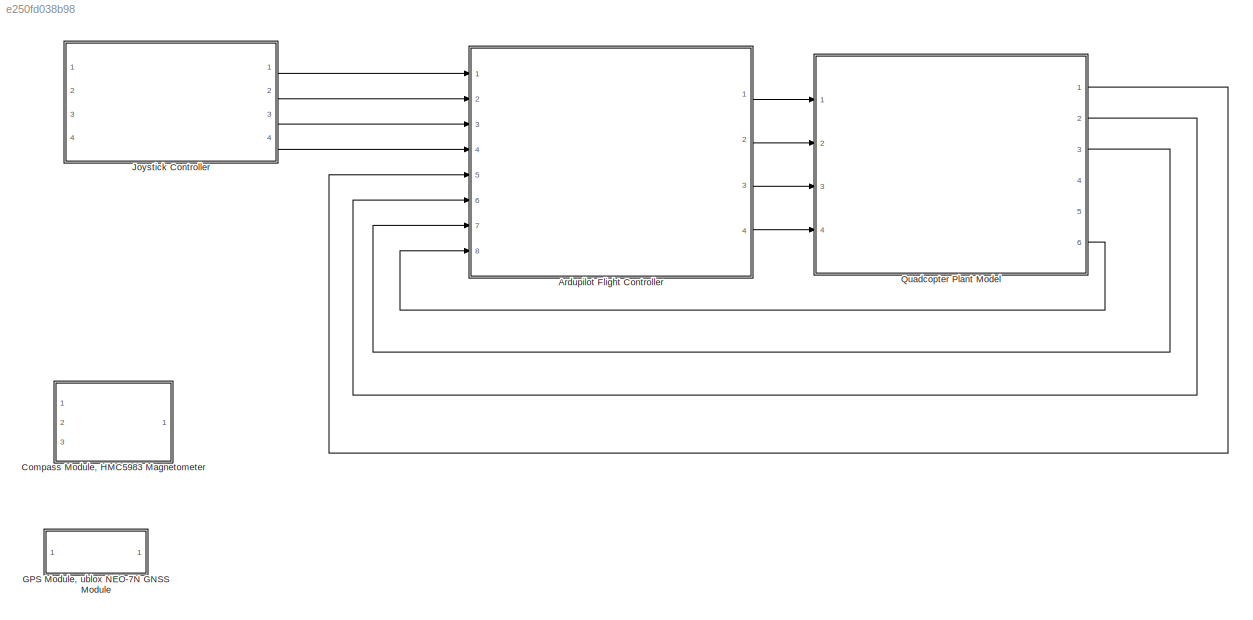
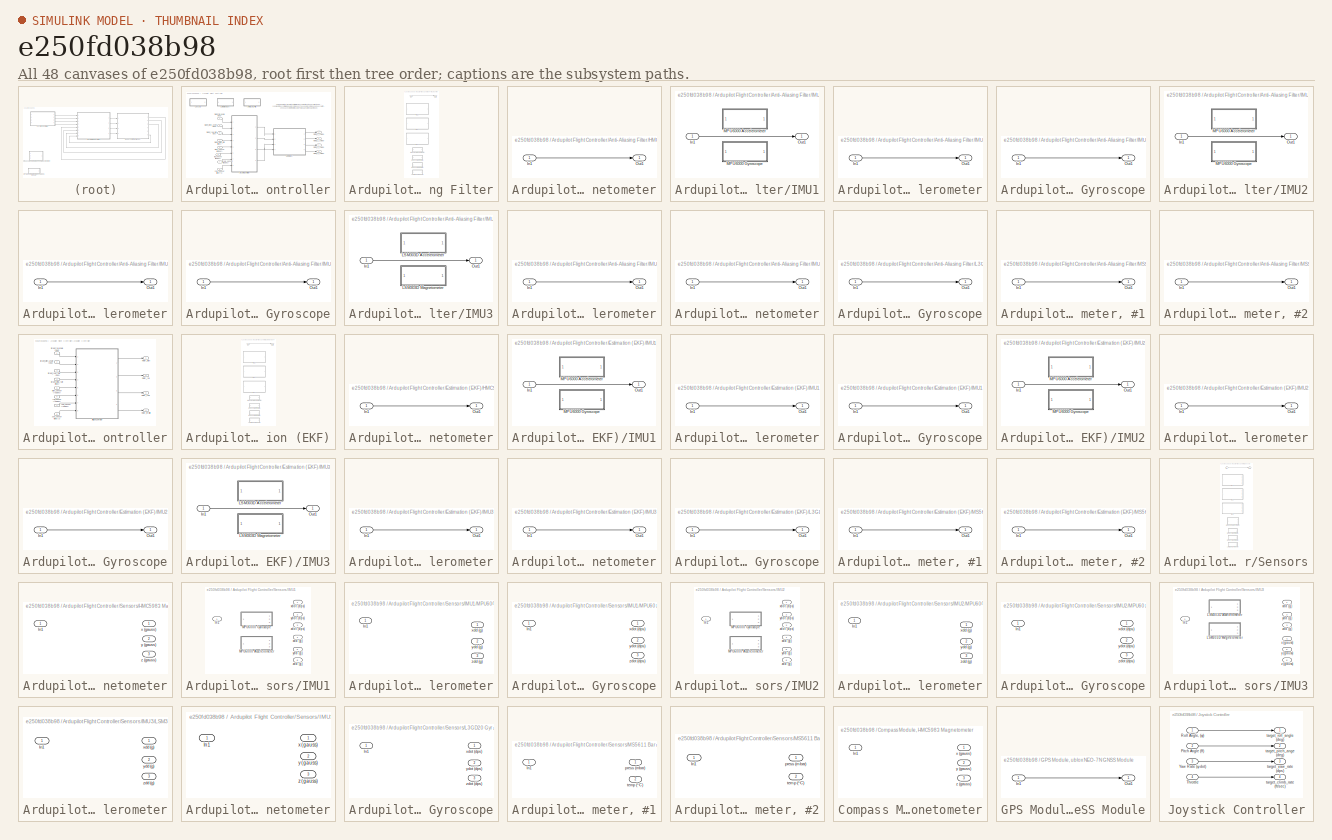
[diagram: thumbnail index - all 48 canvases of the model, root first then tree order]
MODEL slx_e250fd038b98
KIND model
CONFIG AbsTol = auto
CONFIG FixedStep = auto
CONFIG MaxStep = auto
CONFIG MinStep = auto
CONFIG RelTol = 1e-3
CONFIG SampleTimeConstraint = Unconstrained
CONFIG Solver = ode45
CONFIG SolverMode = Auto
CONFIG SolverName = ode45
CONFIG StartTime = 0.0
CONFIG StopTime = 10.0
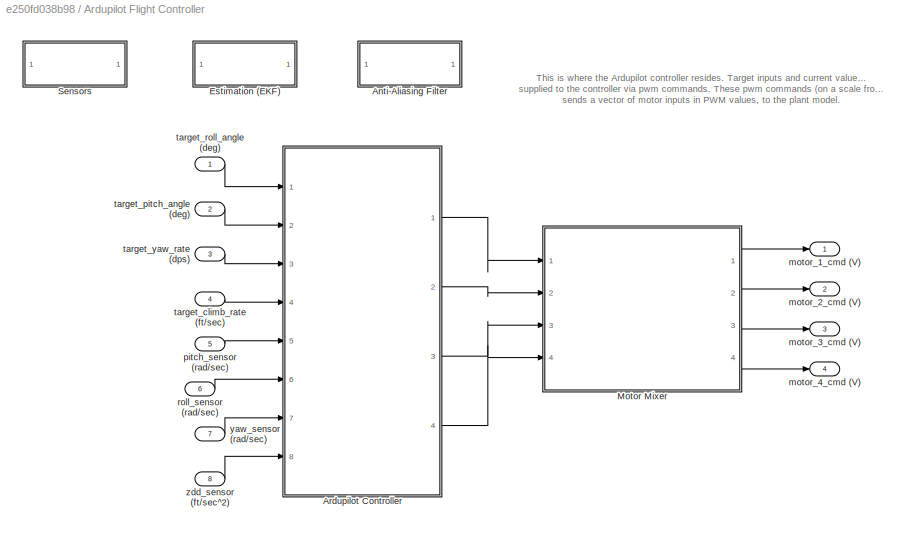
BLOCK [SubSystem] Ardupilot Flight Controller
  Ports = [8, 4]
  RequestExecContextInheritance = off
  Variant = off
BLOCK [SubSystem] Ardupilot Flight Controller/Anti-Aliasing Filter
  Commented = on
  Ports = [1, 1]
  RequestExecContextInheritance = off
  Variant = off
BLOCK [SubSystem] Ardupilot Flight Controller/Anti-Aliasing Filter/HMC5983 Magnetometer
  Ports = [1, 1]
  RequestExecContextInheritance = off
  Variant = off
BLOCK [Inport] Ardupilot Flight Controller/Anti-Aliasing Filter/HMC5983 Magnetometer/In1
  IconDisplay = Port number
BLOCK [Outport] Ardupilot Flight Controller/Anti-Aliasing Filter/HMC5983 Magnetometer/Out1
  IconDisplay = Port number
BLOCK [SubSystem] Ardupilot Flight Controller/Anti-Aliasing Filter/IMU1
  Ports = [1, 1]
  RequestExecContextInheritance = off
  Variant = off
BLOCK [Inport] Ardupilot Flight Controller/Anti-Aliasing Filter/IMU1/In1
  IconDisplay = Port number
BLOCK [SubSystem] Ardupilot Flight Controller/Anti-Aliasing Filter/IMU1/MPU6000 Accelerometer
  Ports = [1, 1]
  RequestExecContextInheritance = off
  Variant = off
BLOCK [Inport] Ardupilot Flight Controller/Anti-Aliasing Filter/IMU1/MPU6000 Accelerometer/In1
  IconDisplay = Port number
BLOCK [Outport] Ardupilot Flight Controller/Anti-Aliasing Filter/IMU1/MPU6000 Accelerometer/Out1
  IconDisplay = Port number
BLOCK [SubSystem] Ardupilot Flight Controller/Anti-Aliasing Filter/IMU1/MPU6000 Gyroscope
  Ports = [1, 1]
  RequestExecContextInheritance = off
  Variant = off
BLOCK [Inport] Ardupilot Flight Controller/Anti-Aliasing Filter/IMU1/MPU6000 Gyroscope/In1
  IconDisplay = Port number
BLOCK [Outport] Ardupilot Flight Controller/Anti-Aliasing Filter/IMU1/MPU6000 Gyroscope/Out1
  IconDisplay = Port number
BLOCK [Outport] Ardupilot Flight Controller/Anti-Aliasing Filter/IMU1/Out1
  IconDisplay = Port number
BLOCK [SubSystem] Ardupilot Flight Controller/Anti-Aliasing Filter/IMU2
  Ports = [1, 1]
  RequestExecContextInheritance = off
  Variant = off
BLOCK [Inport] Ardupilot Flight Controller/Anti-Aliasing Filter/IMU2/In1
  IconDisplay = Port number
BLOCK [SubSystem] Ardupilot Flight Controller/Anti-Aliasing Filter/IMU2/MPU6000 Accelerometer
  Ports = [1, 1]
  RequestExecContextInheritance = off
  Variant = off
BLOCK [Inport] Ardupilot Flight Controller/Anti-Aliasing Filter/IMU2/MPU6000 Accelerometer/In1
  IconDisplay = Port number
BLOCK [Outport] Ardupilot Flight Controller/Anti-Aliasing Filter/IMU2/MPU6000 Accelerometer/Out1
  IconDisplay = Port number
BLOCK [SubSystem] Ardupilot Flight Controller/Anti-Aliasing Filter/IMU2/MPU6000 Gyroscope
  Ports = [1, 1]
  RequestExecContextInheritance = off
  Variant = off
BLOCK [Inport] Ardupilot Flight Controller/Anti-Aliasing Filter/IMU2/MPU6000 Gyroscope/In1
  IconDisplay = Port number
BLOCK [Outport] Ardupilot Flight Controller/Anti-Aliasing Filter/IMU2/MPU6000 Gyroscope/Out1
  IconDisplay = Port number
BLOCK [Outport] Ardupilot Flight Controller/Anti-Aliasing Filter/IMU2/Out1
  IconDisplay = Port number
BLOCK [SubSystem] Ardupilot Flight Controller/Anti-Aliasing Filter/IMU3
  Ports = [1, 1]
  RequestExecContextInheritance = off
  Variant = off
BLOCK [Inport] Ardupilot Flight Controller/Anti-Aliasing Filter/IMU3/In1
  IconDisplay = Port number
BLOCK [SubSystem] Ardupilot Flight Controller/Anti-Aliasing Filter/IMU3/LSM303D Accelerometer
  Ports = [1, 1]
  RequestExecContextInheritance = off
  Variant = off
BLOCK [Inport] Ardupilot Flight Controller/Anti-Aliasing Filter/IMU3/LSM303D Accelerometer/In1
  IconDisplay = Port number
BLOCK [Outport] Ardupilot Flight Controller/Anti-Aliasing Filter/IMU3/LSM303D Accelerometer/Out1
  IconDisplay = Port number
BLOCK [SubSystem] Ardupilot Flight Controller/Anti-Aliasing Filter/IMU3/LSM303D Magnetometer
  Ports = [1, 1]
  RequestExecContextInheritance = off
  Variant = off
BLOCK [Inport] Ardupilot Flight Controller/Anti-Aliasing Filter/IMU3/LSM303D Magnetometer/In1
  IconDisplay = Port number
BLOCK [Outport] Ardupilot Flight Controller/Anti-Aliasing Filter/IMU3/LSM303D Magnetometer/Out1
  IconDisplay = Port number
BLOCK [Outport] Ardupilot Flight Controller/Anti-Aliasing Filter/IMU3/Out1
  IconDisplay = Port number
BLOCK [Inport] Ardupilot Flight Controller/Anti-Aliasing Filter/In1
  IconDisplay = Port number
BLOCK [SubSystem] Ardupilot Flight Controller/Anti-Aliasing Filter/L3GD20 Gyroscope
  Ports = [1, 1]
  RequestExecContextInheritance = off
  Variant = off
BLOCK [Inport] Ardupilot Flight Controller/Anti-Aliasing Filter/L3GD20 Gyroscope/In1
  IconDisplay = Port number
BLOCK [Outport] Ardupilot Flight Controller/Anti-Aliasing Filter/L3GD20 Gyroscope/Out1
  IconDisplay = Port number
BLOCK [SubSystem] Ardupilot Flight Controller/Anti-Aliasing Filter/MS5611 Barometer, #1
  Ports = [1, 1]
  RequestExecContextInheritance = off
  Variant = off
BLOCK [Inport] Ardupilot Flight Controller/Anti-Aliasing Filter/MS5611 Barometer, #1/In1
  IconDisplay = Port number
BLOCK [Outport] Ardupilot Flight Controller/Anti-Aliasing Filter/MS5611 Barometer, #1/Out1
  IconDisplay = Port number
BLOCK [SubSystem] Ardupilot Flight Controller/Anti-Aliasing Filter/MS5611 Barometer, #2
  Ports = [1, 1]
  RequestExecContextInheritance = off
  Variant = off
BLOCK [Inport] Ardupilot Flight Controller/Anti-Aliasing Filter/MS5611 Barometer, #2/In1
  IconDisplay = Port number
BLOCK [Outport] Ardupilot Flight Controller/Anti-Aliasing Filter/MS5611 Barometer, #2/Out1
  IconDisplay = Port number
BLOCK [Outport] Ardupilot Flight Controller/Anti-Aliasing Filter/Out1
  IconDisplay = Port number
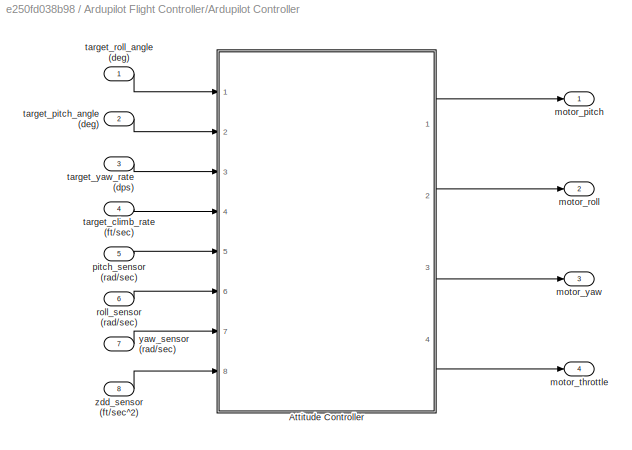
BLOCK [SubSystem] Ardupilot Flight Controller/Ardupilot Controller
  Ports = [8, 4]
  RequestExecContextInheritance = off
  Variant = off
BLOCK [ModelReference] Ardupilot Flight Controller/Ardupilot Controller/Attitude Controller
  CopyOfModelName = quadcopter_plant_model.slx
  ModelNameDialog = attitude_controller.slx
  ModelReferenceVersion = 1.62
  Ports = [8, 4]
  Variant = off
BLOCK [Outport] Ardupilot Flight Controller/Ardupilot Controller/motor_pitch
  IconDisplay = Port number
BLOCK [Outport] Ardupilot Flight Controller/Ardupilot Controller/motor_roll
  IconDisplay = Port number
  Port = 2
BLOCK [Outport] Ardupilot Flight Controller/Ardupilot Controller/motor_throttle
  IconDisplay = Port number
  Port = 4
BLOCK [Outport] Ardupilot Flight Controller/Ardupilot Controller/motor_yaw
  IconDisplay = Port number
  Port = 3
BLOCK [Inport] Ardupilot Flight Controller/Ardupilot Controller/pitch_sensor (rad//sec)
  IconDisplay = Port number
  Port = 5
BLOCK [Inport] Ardupilot Flight Controller/Ardupilot Controller/roll_sensor (rad//sec)
  IconDisplay = Port number
  Port = 6
BLOCK [Inport] Ardupilot Flight Controller/Ardupilot Controller/target_climb_rate (ft//sec)
  IconDisplay = Port number
  Port = 4
BLOCK [Inport] Ardupilot Flight Controller/Ardupilot Controller/target_pitch_angle (deg)
  IconDisplay = Port number
  Port = 2
BLOCK [Inport] Ardupilot Flight Controller/Ardupilot Controller/target_roll_angle (deg)
  IconDisplay = Port number
BLOCK [Inport] Ardupilot Flight Controller/Ardupilot Controller/target_yaw_rate (dps)
  IconDisplay = Port number
  Port = 3
BLOCK [Inport] Ardupilot Flight Controller/Ardupilot Controller/yaw_sensor (rad//sec)
  IconDisplay = Port number
  Port = 7
BLOCK [Inport] Ardupilot Flight Controller/Ardupilot Controller/zdd_sensor (ft//sec^2)
  IconDisplay = Port number
  Port = 8
BLOCK [SubSystem] Ardupilot Flight Controller/Estimation (EKF)
  Commented = on
  Ports = [1, 1]
  RequestExecContextInheritance = off
  Variant = off
BLOCK [SubSystem] Ardupilot Flight Controller/Estimation (EKF)/HMC5983 Magnetometer
  Ports = [1, 1]
  RequestExecContextInheritance = off
  Variant = off
BLOCK [Inport] Ardupilot Flight Controller/Estimation (EKF)/HMC5983 Magnetometer/In1
  IconDisplay = Port number
BLOCK [Outport] Ardupilot Flight Controller/Estimation (EKF)/HMC5983 Magnetometer/Out1
  IconDisplay = Port number
BLOCK [SubSystem] Ardupilot Flight Controller/Estimation (EKF)/IMU1
  Ports = [1, 1]
  RequestExecContextInheritance = off
  Variant = off
BLOCK [Inport] Ardupilot Flight Controller/Estimation (EKF)/IMU1/In1
  IconDisplay = Port number
BLOCK [SubSystem] Ardupilot Flight Controller/Estimation (EKF)/IMU1/MPU6000 Accelerometer
  Ports = [1, 1]
  RequestExecContextInheritance = off
  Variant = off
BLOCK [Inport] Ardupilot Flight Controller/Estimation (EKF)/IMU1/MPU6000 Accelerometer/In1
  IconDisplay = Port number
BLOCK [Outport] Ardupilot Flight Controller/Estimation (EKF)/IMU1/MPU6000 Accelerometer/Out1
  IconDisplay = Port number
BLOCK [SubSystem] Ardupilot Flight Controller/Estimation (EKF)/IMU1/MPU6000 Gyroscope
  Ports = [1, 1]
  RequestExecContextInheritance = off
  Variant = off
BLOCK [Inport] Ardupilot Flight Controller/Estimation (EKF)/IMU1/MPU6000 Gyroscope/In1
  IconDisplay = Port number
BLOCK [Outport] Ardupilot Flight Controller/Estimation (EKF)/IMU1/MPU6000 Gyroscope/Out1
  IconDisplay = Port number
BLOCK [Outport] Ardupilot Flight Controller/Estimation (EKF)/IMU1/Out1
  IconDisplay = Port number
BLOCK [SubSystem] Ardupilot Flight Controller/Estimation (EKF)/IMU2
  Ports = [1, 1]
  RequestExecContextInheritance = off
  Variant = off
BLOCK [Inport] Ardupilot Flight Controller/Estimation (EKF)/IMU2/In1
  IconDisplay = Port number
BLOCK [SubSystem] Ardupilot Flight Controller/Estimation (EKF)/IMU2/MPU6000 Accelerometer
  Ports = [1, 1]
  RequestExecContextInheritance = off
  Variant = off
BLOCK [Inport] Ardupilot Flight Controller/Estimation (EKF)/IMU2/MPU6000 Accelerometer/In1
  IconDisplay = Port number
BLOCK [Outport] Ardupilot Flight Controller/Estimation (EKF)/IMU2/MPU6000 Accelerometer/Out1
  IconDisplay = Port number
BLOCK [SubSystem] Ardupilot Flight Controller/Estimation (EKF)/IMU2/MPU6000 Gyroscope
  Ports = [1, 1]
  RequestExecContextInheritance = off
  Variant = off
BLOCK [Inport] Ardupilot Flight Controller/Estimation (EKF)/IMU2/MPU6000 Gyroscope/In1
  IconDisplay = Port number
BLOCK [Outport] Ardupilot Flight Controller/Estimation (EKF)/IMU2/MPU6000 Gyroscope/Out1
  IconDisplay = Port number
BLOCK [Outport] Ardupilot Flight Controller/Estimation (EKF)/IMU2/Out1
  IconDisplay = Port number
BLOCK [SubSystem] Ardupilot Flight Controller/Estimation (EKF)/IMU3
  Ports = [1, 1]
  RequestExecContextInheritance = off
  Variant = off
BLOCK [Inport] Ardupilot Flight Controller/Estimation (EKF)/IMU3/In1
  IconDisplay = Port number
BLOCK [SubSystem] Ardupilot Flight Controller/Estimation (EKF)/IMU3/LSM303D Accelerometer
  Ports = [1, 1]
  RequestExecContextInheritance = off
  Variant = off
BLOCK [Inport] Ardupilot Flight Controller/Estimation (EKF)/IMU3/LSM303D Accelerometer/In1
  IconDisplay = Port number
BLOCK [Outport] Ardupilot Flight Controller/Estimation (EKF)/IMU3/LSM303D Accelerometer/Out1
  IconDisplay = Port number
BLOCK [SubSystem] Ardupilot Flight Controller/Estimation (EKF)/IMU3/LSM303D Magnetometer
  Ports = [1, 1]
  RequestExecContextInheritance = off
  Variant = off
BLOCK [Inport] Ardupilot Flight Controller/Estimation (EKF)/IMU3/LSM303D Magnetometer/In1
  IconDisplay = Port number
BLOCK [Outport] Ardupilot Flight Controller/Estimation (EKF)/IMU3/LSM303D Magnetometer/Out1
  IconDisplay = Port number
BLOCK [Outport] Ardupilot Flight Controller/Estimation (EKF)/IMU3/Out1
  IconDisplay = Port number
BLOCK [Inport] Ardupilot Flight Controller/Estimation (EKF)/In1
  IconDisplay = Port number
BLOCK [SubSystem] Ardupilot Flight Controller/Estimation (EKF)/L3GD20 Gyroscope
  Ports = [1, 1]
  RequestExecContextInheritance = off
  Variant = off
BLOCK [Inport] Ardupilot Flight Controller/Estimation (EKF)/L3GD20 Gyroscope/In1
  IconDisplay = Port number
BLOCK [Outport] Ardupilot Flight Controller/Estimation (EKF)/L3GD20 Gyroscope/Out1
  IconDisplay = Port number
BLOCK [SubSystem] Ardupilot Flight Controller/Estimation (EKF)/MS5611 Barometer, #1
  Ports = [1, 1]
  RequestExecContextInheritance = off
  Variant = off
BLOCK [Inport] Ardupilot Flight Controller/Estimation (EKF)/MS5611 Barometer, #1/In1
  IconDisplay = Port number
BLOCK [Outport] Ardupilot Flight Controller/Estimation (EKF)/MS5611 Barometer, #1/Out1
  IconDisplay = Port number
BLOCK [SubSystem] Ardupilot Flight Controller/Estimation (EKF)/MS5611 Barometer, #2
  Ports = [1, 1]
  RequestExecContextInheritance = off
  Variant = off
BLOCK [Inport] Ardupilot Flight Controller/Estimation (EKF)/MS5611 Barometer, #2/In1
  IconDisplay = Port number
BLOCK [Outport] Ardupilot Flight Controller/Estimation (EKF)/MS5611 Barometer, #2/Out1
  IconDisplay = Port number
BLOCK [Outport] Ardupilot Flight Controller/Estimation (EKF)/Out1
  IconDisplay = Port number
BLOCK [ModelReference] Ardupilot Flight Controller/Motor Mixer
  CopyOfModelName = quadcopter_plant_model.slx
  ModelNameDialog = motor_mixer.slx
  ModelReferenceVersion = 1.6
  Ports = [4, 4]
  Variant = off
BLOCK [SubSystem] Ardupilot Flight Controller/Sensors
  Commented = on
  Ports = [1, 1]
  RequestExecContextInheritance = off
  Variant = off
BLOCK [SubSystem] Ardupilot Flight Controller/Sensors/HMC5983 Magnetometer
  Ports = [1, 3]
  RequestExecContextInheritance = off
  Variant = off
BLOCK [Inport] Ardupilot Flight Controller/Sensors/HMC5983 Magnetometer/In1
  IconDisplay = Port number
BLOCK [Outport] Ardupilot Flight Controller/Sensors/HMC5983 Magnetometer/x (gauss)
  IconDisplay = Port number
BLOCK [Outport] Ardupilot Flight Controller/Sensors/HMC5983 Magnetometer/y (gauss)
  IconDisplay = Port number
  Port = 2
BLOCK [Outport] Ardupilot Flight Controller/Sensors/HMC5983 Magnetometer/z (gauss)
  IconDisplay = Port number
  Port = 3
BLOCK [SubSystem] Ardupilot Flight Controller/Sensors/IMU1
  Ports = [1, 6]
  RequestExecContextInheritance = off
  Variant = off
BLOCK [Inport] Ardupilot Flight Controller/Sensors/IMU1/In1
  IconDisplay = Port number
BLOCK [SubSystem] Ardupilot Flight Controller/Sensors/IMU1/MPU6000 Accelerometer
  Ports = [1, 3]
  RequestExecContextInheritance = off
  Variant = off
BLOCK [Inport] Ardupilot Flight Controller/Sensors/IMU1/MPU6000 Accelerometer/In1
  IconDisplay = Port number
BLOCK [Outport] Ardupilot Flight Controller/Sensors/IMU1/MPU6000 Accelerometer/xdd (g)
  IconDisplay = Port number
BLOCK [Outport] Ardupilot Flight Controller/Sensors/IMU1/MPU6000 Accelerometer/ydd (g)
  IconDisplay = Port number
  Port = 2
BLOCK [Outport] Ardupilot Flight Controller/Sensors/IMU1/MPU6000 Accelerometer/zdd (g)
  IconDisplay = Port number
  Port = 3
BLOCK [SubSystem] Ardupilot Flight Controller/Sensors/IMU1/MPU6000 Gyroscope
  Ports = [1, 3]
  RequestExecContextInheritance = off
  Variant = off
BLOCK [Inport] Ardupilot Flight Controller/Sensors/IMU1/MPU6000 Gyroscope/In1
  IconDisplay = Port number
BLOCK [Outport] Ardupilot Flight Controller/Sensors/IMU1/MPU6000 Gyroscope/xdot (dps)
  IconDisplay = Port number
BLOCK [Outport] Ardupilot Flight Controller/Sensors/IMU1/MPU6000 Gyroscope/ydot (dps)
  IconDisplay = Port number
  Port = 2
BLOCK [Outport] Ardupilot Flight Controller/Sensors/IMU1/MPU6000 Gyroscope/zdot (dps)
  IconDisplay = Port number
  Port = 3
BLOCK [Outport] Ardupilot Flight Controller/Sensors/IMU1/xdd (g)
  IconDisplay = Port number
  Port = 4
BLOCK [Outport] Ardupilot Flight Controller/Sensors/IMU1/xdot (dps)
  IconDisplay = Port number
BLOCK [Outport] Ardupilot Flight Controller/Sensors/IMU1/ydd (g)
  IconDisplay = Port number
  Port = 5
BLOCK [Outport] Ardupilot Flight Controller/Sensors/IMU1/ydot (dps)
  IconDisplay = Port number
  Port = 2
BLOCK [Outport] Ardupilot Flight Controller/Sensors/IMU1/zdd (g)
  IconDisplay = Port number
  Port = 6
BLOCK [Outport] Ardupilot Flight Controller/Sensors/IMU1/zdot (dps)
  IconDisplay = Port number
  Port = 3
BLOCK [SubSystem] Ardupilot Flight Controller/Sensors/IMU2
  Ports = [1, 6]
  RequestExecContextInheritance = off
  Variant = off
BLOCK [Inport] Ardupilot Flight Controller/Sensors/IMU2/In1
  IconDisplay = Port number
BLOCK [SubSystem] Ardupilot Flight Controller/Sensors/IMU2/MPU6000 Accelerometer
  Ports = [1, 3]
  RequestExecContextInheritance = off
  Variant = off
BLOCK [Inport] Ardupilot Flight Controller/Sensors/IMU2/MPU6000 Accelerometer/In1
  IconDisplay = Port number
BLOCK [Outport] Ardupilot Flight Controller/Sensors/IMU2/MPU6000 Accelerometer/xdd (g)
  IconDisplay = Port number
BLOCK [Outport] Ardupilot Flight Controller/Sensors/IMU2/MPU6000 Accelerometer/ydd (g)
  IconDisplay = Port number
  Port = 2
BLOCK [Outport] Ardupilot Flight Controller/Sensors/IMU2/MPU6000 Accelerometer/zdd (g)
  IconDisplay = Port number
  Port = 3
BLOCK [SubSystem] Ardupilot Flight Controller/Sensors/IMU2/MPU6000 Gyroscope
  Ports = [1, 3]
  RequestExecContextInheritance = off
  Variant = off
BLOCK [Inport] Ardupilot Flight Controller/Sensors/IMU2/MPU6000 Gyroscope/In1
  IconDisplay = Port number
BLOCK [Outport] Ardupilot Flight Controller/Sensors/IMU2/MPU6000 Gyroscope/xdot (dps)
  IconDisplay = Port number
BLOCK [Outport] Ardupilot Flight Controller/Sensors/IMU2/MPU6000 Gyroscope/ydot (dps)
  IconDisplay = Port number
  Port = 2
BLOCK [Outport] Ardupilot Flight Controller/Sensors/IMU2/MPU6000 Gyroscope/zdot (dps)
  IconDisplay = Port number
  Port = 3
BLOCK [Outport] Ardupilot Flight Controller/Sensors/IMU2/xdd (g)
  IconDisplay = Port number
  Port = 4
BLOCK [Outport] Ardupilot Flight Controller/Sensors/IMU2/xdot (dps)
  IconDisplay = Port number
BLOCK [Outport] Ardupilot Flight Controller/Sensors/IMU2/ydd (g)
  IconDisplay = Port number
  Port = 5
BLOCK [Outport] Ardupilot Flight Controller/Sensors/IMU2/ydot (dps)
  IconDisplay = Port number
  Port = 2
BLOCK [Outport] Ardupilot Flight Controller/Sensors/IMU2/zdd (g)
  IconDisplay = Port number
  Port = 6
BLOCK [Outport] Ardupilot Flight Controller/Sensors/IMU2/zdot (dps)
  IconDisplay = Port number
  Port = 3
BLOCK [SubSystem] Ardupilot Flight Controller/Sensors/IMU3
  Ports = [1, 6]
  RequestExecContextInheritance = off
  Variant = off
BLOCK [Inport] Ardupilot Flight Controller/Sensors/IMU3/In1
  IconDisplay = Port number
BLOCK [SubSystem] Ardupilot Flight Controller/Sensors/IMU3/LSM303D Accelerometer
  Ports = [1, 3]
  RequestExecContextInheritance = off
  Variant = off
BLOCK [Inport] Ardupilot Flight Controller/Sensors/IMU3/LSM303D Accelerometer/In1
  IconDisplay = Port number
BLOCK [Outport] Ardupilot Flight Controller/Sensors/IMU3/LSM303D Accelerometer/xdd (g)
  IconDisplay = Port number
BLOCK [Outport] Ardupilot Flight Controller/Sensors/IMU3/LSM303D Accelerometer/ydd (g)
  IconDisplay = Port number
  Port = 2
BLOCK [Outport] Ardupilot Flight Controller/Sensors/IMU3/LSM303D Accelerometer/zdd (g)
  IconDisplay = Port number
  Port = 3
BLOCK [SubSystem] Ardupilot Flight Controller/Sensors/IMU3/LSM303D Magnetometer
  Ports = [1, 3]
  RequestExecContextInheritance = off
  Variant = off
BLOCK [Inport] Ardupilot Flight Controller/Sensors/IMU3/LSM303D Magnetometer/In1
  IconDisplay = Port number
BLOCK [Outport] Ardupilot Flight Controller/Sensors/IMU3/LSM303D Magnetometer/x (gauss)
  IconDisplay = Port number
BLOCK [Outport] Ardupilot Flight Controller/Sensors/IMU3/LSM303D Magnetometer/y (gauss)
  IconDisplay = Port number
  Port = 2
BLOCK [Outport] Ardupilot Flight Controller/Sensors/IMU3/LSM303D Magnetometer/z (gauss)
  IconDisplay = Port number
  Port = 3
BLOCK [Outport] Ardupilot Flight Controller/Sensors/IMU3/x (gauss)
  IconDisplay = Port number
  Port = 4
BLOCK [Outport] Ardupilot Flight Controller/Sensors/IMU3/xdd (g)
  IconDisplay = Port number
BLOCK [Outport] Ardupilot Flight Controller/Sensors/IMU3/y (gauss)
  IconDisplay = Port number
  Port = 5
BLOCK [Outport] Ardupilot Flight Controller/Sensors/IMU3/ydd (g)
  IconDisplay = Port number
  Port = 2
BLOCK [Outport] Ardupilot Flight Controller/Sensors/IMU3/z (gauss)
  IconDisplay = Port number
  Port = 6
BLOCK [Outport] Ardupilot Flight Controller/Sensors/IMU3/zdd (g)
  IconDisplay = Port number
  Port = 3
BLOCK [Inport] Ardupilot Flight Controller/Sensors/In1
  IconDisplay = Port number
BLOCK [SubSystem] Ardupilot Flight Controller/Sensors/L3GD20 Gyroscope
  Ports = [1, 3]
  RequestExecContextInheritance = off
  Variant = off
BLOCK [Inport] Ardupilot Flight Controller/Sensors/L3GD20 Gyroscope/In1
  IconDisplay = Port number
BLOCK [Outport] Ardupilot Flight Controller/Sensors/L3GD20 Gyroscope/xdot (dps)
  IconDisplay = Port number
BLOCK [Outport] Ardupilot Flight Controller/Sensors/L3GD20 Gyroscope/ydot (dps)
  IconDisplay = Port number
  Port = 2
BLOCK [Outport] Ardupilot Flight Controller/Sensors/L3GD20 Gyroscope/zdot (dps)
  IconDisplay = Port number
  Port = 3
BLOCK [SubSystem] Ardupilot Flight Controller/Sensors/MS5611 Barometer, #1
  Ports = [1, 2]
  RequestExecContextInheritance = off
  Variant = off
BLOCK [Inport] Ardupilot Flight Controller/Sensors/MS5611 Barometer, #1/In1
  IconDisplay = Port number
BLOCK [Outport] Ardupilot Flight Controller/Sensors/MS5611 Barometer, #1/press (mbar)
  IconDisplay = Port number
BLOCK [Outport] Ardupilot Flight Controller/Sensors/MS5611 Barometer, #1/temp (°C)
  IconDisplay = Port number
  Port = 2
BLOCK [SubSystem] Ardupilot Flight Controller/Sensors/MS5611 Barometer, #2
  Ports = [1, 2]
  RequestExecContextInheritance = off
  Variant = off
BLOCK [Inport] Ardupilot Flight Controller/Sensors/MS5611 Barometer, #2/In1
  IconDisplay = Port number
BLOCK [Outport] Ardupilot Flight Controller/Sensors/MS5611 Barometer, #2/press (mbar)
  IconDisplay = Port number
BLOCK [Outport] Ardupilot Flight Controller/Sensors/MS5611 Barometer, #2/temp (°C)
  IconDisplay = Port number
  Port = 2
BLOCK [Outport] Ardupilot Flight Controller/Sensors/Out1
  IconDisplay = Port number
BLOCK [Outport] Ardupilot Flight Controller/motor_1_cmd (V)
  IconDisplay = Port number
BLOCK [Outport] Ardupilot Flight Controller/motor_2_cmd (V)
  IconDisplay = Port number
  Port = 2
BLOCK [Outport] Ardupilot Flight Controller/motor_3_cmd (V)
  IconDisplay = Port number
  Port = 3
BLOCK [Outport] Ardupilot Flight Controller/motor_4_cmd (V)
  IconDisplay = Port number
  Port = 4
BLOCK [Inport] Ardupilot Flight Controller/pitch_sensor (rad//sec)
  IconDisplay = Port number
  Port = 5
BLOCK [Inport] Ardupilot Flight Controller/roll_sensor (rad//sec)
  IconDisplay = Port number
  Port = 6
BLOCK [Inport] Ardupilot Flight Controller/target_climb_rate (ft//sec)
  IconDisplay = Port number
  Port = 4
BLOCK [Inport] Ardupilot Flight Controller/target_pitch_angle (deg)
  IconDisplay = Port number
  Port = 2
BLOCK [Inport] Ardupilot Flight Controller/target_roll_angle (deg)
  IconDisplay = Port number
BLOCK [Inport] Ardupilot Flight Controller/target_yaw_rate (dps)
  IconDisplay = Port number
  Port = 3
BLOCK [Inport] Ardupilot Flight Controller/yaw_sensor (rad//sec)
  IconDisplay = Port number
  Port = 7
BLOCK [Inport] Ardupilot Flight Controller/zdd_sensor (ft//sec^2)
  IconDisplay = Port number
  Port = 8
BLOCK [SubSystem] Compass Module, HMC5983 Magnetometer
  Commented = on
  Ports = [1, 3]
  RequestExecContextInheritance = off
  Variant = off
BLOCK [Inport] Compass Module, HMC5983 Magnetometer/In1
  IconDisplay = Port number
BLOCK [Outport] Compass Module, HMC5983 Magnetometer/x (gauss)
  IconDisplay = Port number
BLOCK [Outport] Compass Module, HMC5983 Magnetometer/y (gauss)
  IconDisplay = Port number
  Port = 2
BLOCK [Outport] Compass Module, HMC5983 Magnetometer/z (gauss)
  IconDisplay = Port number
  Port = 3
BLOCK [SubSystem] GPS Module, ublox NEO-7N GNSS Module
  Commented = on
  Ports = [1, 1]
  RequestExecContextInheritance = off
  Variant = off
BLOCK [Inport] GPS Module, ublox NEO-7N GNSS Module/In1
  IconDisplay = Port number
BLOCK [Outport] GPS Module, ublox NEO-7N GNSS Module/Out1
  IconDisplay = Port number
BLOCK [SubSystem] Joystick Controller
  Ports = [4, 4]
  RequestExecContextInheritance = off
  Variant = off
BLOCK [Inport] Joystick Controller/Pitch Angle (θ)
  IconDisplay = Port number
  Port = 2
BLOCK [Inport] Joystick Controller/Roll Angle, (φ)
  IconDisplay = Port number
BLOCK [Inport] Joystick Controller/Throttle
  IconDisplay = Port number
  Port = 4
BLOCK [Inport] Joystick Controller/Yaw Rate (ψdot)
  IconDisplay = Port number
  Port = 3
BLOCK [Outport] Joystick Controller/target_climb_rate (ft//sec)
  IconDisplay = Port number
  Port = 4
BLOCK [Outport] Joystick Controller/target_pitch_ange (deg)
  IconDisplay = Port number
  Port = 2
BLOCK [Outport] Joystick Controller/target_roll_angle (deg)
  IconDisplay = Port number
BLOCK [Outport] Joystick Controller/target_yaw_rate (dps)
  IconDisplay = Port number
  Port = 3
BLOCK [ModelReference] Quadcopter Plant Model
  CopyOfModelName = quadcopter_plant_model.slx
  ModelNameDialog = quadcopter_plant_model.slx
  ModelReferenceVersion = 1.2
  Ports = [4, 6]
  Variant = off
ANNOTATION Ardupilot Flight Controller: This is where the Ardupilot controller resides. Target inputs and current values are taken and supplied to the controller via pwm commands. These pwm commands (on a scale from 0 to 1) are passed to the motor mixer which then sends a vector of motor inputs in PWM values, to the plant model.
LINE Ardupilot Flight Controller/Anti-Aliasing Filter/HMC5983 Magnetometer/In1:1 -> Ardupilot Flight Controller/Anti-Aliasing Filter/HMC5983 Magnetometer/Out1:1
LINE Ardupilot Flight Controller/Anti-Aliasing Filter/IMU1/In1:1 -> Ardupilot Flight Controller/Anti-Aliasing Filter/IMU1/Out1:1
LINE Ardupilot Flight Controller/Anti-Aliasing Filter/IMU1/MPU6000 Accelerometer/In1:1 -> Ardupilot Flight Controller/Anti-Aliasing Filter/IMU1/MPU6000 Accelerometer/Out1:1
LINE Ardupilot Flight Controller/Anti-Aliasing Filter/IMU1/MPU6000 Gyroscope/In1:1 -> Ardupilot Flight Controller/Anti-Aliasing Filter/IMU1/MPU6000 Gyroscope/Out1:1
LINE Ardupilot Flight Controller/Anti-Aliasing Filter/IMU2/In1:1 -> Ardupilot Flight Controller/Anti-Aliasing Filter/IMU2/Out1:1
LINE Ardupilot Flight Controller/Anti-Aliasing Filter/IMU2/MPU6000 Accelerometer/In1:1 -> Ardupilot Flight Controller/Anti-Aliasing Filter/IMU2/MPU6000 Accelerometer/Out1:1
LINE Ardupilot Flight Controller/Anti-Aliasing Filter/IMU2/MPU6000 Gyroscope/In1:1 -> Ardupilot Flight Controller/Anti-Aliasing Filter/IMU2/MPU6000 Gyroscope/Out1:1
LINE Ardupilot Flight Controller/Anti-Aliasing Filter/IMU3/In1:1 -> Ardupilot Flight Controller/Anti-Aliasing Filter/IMU3/Out1:1
LINE Ardupilot Flight Controller/Anti-Aliasing Filter/IMU3/LSM303D Accelerometer/In1:1 -> Ardupilot Flight Controller/Anti-Aliasing Filter/IMU3/LSM303D Accelerometer/Out1:1
LINE Ardupilot Flight Controller/Anti-Aliasing Filter/IMU3/LSM303D Magnetometer/In1:1 -> Ardupilot Flight Controller/Anti-Aliasing Filter/IMU3/LSM303D Magnetometer/Out1:1
LINE Ardupilot Flight Controller/Anti-Aliasing Filter/In1:1 -> Ardupilot Flight Controller/Anti-Aliasing Filter/Out1:1
LINE Ardupilot Flight Controller/Anti-Aliasing Filter/L3GD20 Gyroscope/In1:1 -> Ardupilot Flight Controller/Anti-Aliasing Filter/L3GD20 Gyroscope/Out1:1
LINE Ardupilot Flight Controller/Anti-Aliasing Filter/MS5611 Barometer, #1/In1:1 -> Ardupilot Flight Controller/Anti-Aliasing Filter/MS5611 Barometer, #1/Out1:1
LINE Ardupilot Flight Controller/Anti-Aliasing Filter/MS5611 Barometer, #2/In1:1 -> Ardupilot Flight Controller/Anti-Aliasing Filter/MS5611 Barometer, #2/Out1:1
LINE Ardupilot Flight Controller/Ardupilot Controller/Attitude Controller:1 -> Ardupilot Flight Controller/Ardupilot Controller/motor_pitch:1
LINE Ardupilot Flight Controller/Ardupilot Controller/Attitude Controller:2 -> Ardupilot Flight Controller/Ardupilot Controller/motor_roll:1
LINE Ardupilot Flight Controller/Ardupilot Controller/Attitude Controller:3 -> Ardupilot Flight Controller/Ardupilot Controller/motor_yaw:1
LINE Ardupilot Flight Controller/Ardupilot Controller/Attitude Controller:4 -> Ardupilot Flight Controller/Ardupilot Controller/motor_throttle:1
LINE Ardupilot Flight Controller/Ardupilot Controller/pitch_sensor (rad//sec):1 -> Ardupilot Flight Controller/Ardupilot Controller/Attitude Controller:5
LINE Ardupilot Flight Controller/Ardupilot Controller/roll_sensor (rad//sec):1 -> Ardupilot Flight Controller/Ardupilot Controller/Attitude Controller:6
LINE Ardupilot Flight Controller/Ardupilot Controller/target_climb_rate (ft//sec):1 -> Ardupilot Flight Controller/Ardupilot Controller/Attitude Controller:4
LINE Ardupilot Flight Controller/Ardupilot Controller/target_pitch_angle (deg):1 -> Ardupilot Flight Controller/Ardupilot Controller/Attitude Controller:2
LINE Ardupilot Flight Controller/Ardupilot Controller/target_roll_angle (deg):1 -> Ardupilot Flight Controller/Ardupilot Controller/Attitude Controller:1
LINE Ardupilot Flight Controller/Ardupilot Controller/target_yaw_rate (dps):1 -> Ardupilot Flight Controller/Ardupilot Controller/Attitude Controller:3
LINE Ardupilot Flight Controller/Ardupilot Controller/yaw_sensor (rad//sec):1 -> Ardupilot Flight Controller/Ardupilot Controller/Attitude Controller:7
LINE Ardupilot Flight Controller/Ardupilot Controller/zdd_sensor (ft//sec^2):1 -> Ardupilot Flight Controller/Ardupilot Controller/Attitude Controller:8
LINE Ardupilot Flight Controller/Ardupilot Controller:1 -> Ardupilot Flight Controller/Motor Mixer:1
LINE Ardupilot Flight Controller/Ardupilot Controller:2 -> Ardupilot Flight Controller/Motor Mixer:2
LINE Ardupilot Flight Controller/Ardupilot Controller:3 -> Ardupilot Flight Controller/Motor Mixer:3
LINE Ardupilot Flight Controller/Ardupilot Controller:4 -> Ardupilot Flight Controller/Motor Mixer:4
LINE Ardupilot Flight Controller/Estimation (EKF)/HMC5983 Magnetometer/In1:1 -> Ardupilot Flight Controller/Estimation (EKF)/HMC5983 Magnetometer/Out1:1
LINE Ardupilot Flight Controller/Estimation (EKF)/IMU1/In1:1 -> Ardupilot Flight Controller/Estimation (EKF)/IMU1/Out1:1
LINE Ardupilot Flight Controller/Estimation (EKF)/IMU1/MPU6000 Accelerometer/In1:1 -> Ardupilot Flight Controller/Estimation (EKF)/IMU1/MPU6000 Accelerometer/Out1:1
LINE Ardupilot Flight Controller/Estimation (EKF)/IMU1/MPU6000 Gyroscope/In1:1 -> Ardupilot Flight Controller/Estimation (EKF)/IMU1/MPU6000 Gyroscope/Out1:1
LINE Ardupilot Flight Controller/Estimation (EKF)/IMU2/In1:1 -> Ardupilot Flight Controller/Estimation (EKF)/IMU2/Out1:1
LINE Ardupilot Flight Controller/Estimation (EKF)/IMU2/MPU6000 Accelerometer/In1:1 -> Ardupilot Flight Controller/Estimation (EKF)/IMU2/MPU6000 Accelerometer/Out1:1
LINE Ardupilot Flight Controller/Estimation (EKF)/IMU2/MPU6000 Gyroscope/In1:1 -> Ardupilot Flight Controller/Estimation (EKF)/IMU2/MPU6000 Gyroscope/Out1:1
LINE Ardupilot Flight Controller/Estimation (EKF)/IMU3/In1:1 -> Ardupilot Flight Controller/Estimation (EKF)/IMU3/Out1:1
LINE Ardupilot Flight Controller/Estimation (EKF)/IMU3/LSM303D Accelerometer/In1:1 -> Ardupilot Flight Controller/Estimation (EKF)/IMU3/LSM303D Accelerometer/Out1:1
LINE Ardupilot Flight Controller/Estimation (EKF)/IMU3/LSM303D Magnetometer/In1:1 -> Ardupilot Flight Controller/Estimation (EKF)/IMU3/LSM303D Magnetometer/Out1:1
LINE Ardupilot Flight Controller/Estimation (EKF)/In1:1 -> Ardupilot Flight Controller/Estimation (EKF)/Out1:1
LINE Ardupilot Flight Controller/Estimation (EKF)/L3GD20 Gyroscope/In1:1 -> Ardupilot Flight Controller/Estimation (EKF)/L3GD20 Gyroscope/Out1:1
LINE Ardupilot Flight Controller/Estimation (EKF)/MS5611 Barometer, #1/In1:1 -> Ardupilot Flight Controller/Estimation (EKF)/MS5611 Barometer, #1/Out1:1
LINE Ardupilot Flight Controller/Estimation (EKF)/MS5611 Barometer, #2/In1:1 -> Ardupilot Flight Controller/Estimation (EKF)/MS5611 Barometer, #2/Out1:1
LINE Ardupilot Flight Controller/Motor Mixer:1 -> Ardupilot Flight Controller/motor_1_cmd (V):1
LINE Ardupilot Flight Controller/Motor Mixer:2 -> Ardupilot Flight Controller/motor_2_cmd (V):1
LINE Ardupilot Flight Controller/Motor Mixer:3 -> Ardupilot Flight Controller/motor_3_cmd (V):1
LINE Ardupilot Flight Controller/Motor Mixer:4 -> Ardupilot Flight Controller/motor_4_cmd (V):1
LINE Ardupilot Flight Controller/Sensors/In1:1 -> Ardupilot Flight Controller/Sensors/Out1:1
LINE Ardupilot Flight Controller/pitch_sensor (rad//sec):1 -> Ardupilot Flight Controller/Ardupilot Controller:5
LINE Ardupilot Flight Controller/roll_sensor (rad//sec):1 -> Ardupilot Flight Controller/Ardupilot Controller:6
LINE Ardupilot Flight Controller/target_climb_rate (ft//sec):1 -> Ardupilot Flight Controller/Ardupilot Controller:4
LINE Ardupilot Flight Controller/target_pitch_angle (deg):1 -> Ardupilot Flight Controller/Ardupilot Controller:2
LINE Ardupilot Flight Controller/target_roll_angle (deg):1 -> Ardupilot Flight Controller/Ardupilot Controller:1
LINE Ardupilot Flight Controller/target_yaw_rate (dps):1 -> Ardupilot Flight Controller/Ardupilot Controller:3
LINE Ardupilot Flight Controller/yaw_sensor (rad//sec):1 -> Ardupilot Flight Controller/Ardupilot Controller:7
LINE Ardupilot Flight Controller/zdd_sensor (ft//sec^2):1 -> Ardupilot Flight Controller/Ardupilot Controller:8
LINE Ardupilot Flight Controller:1 -> Quadcopter Plant Model:1
LINE Ardupilot Flight Controller:2 -> Quadcopter Plant Model:2
LINE Ardupilot Flight Controller:3 -> Quadcopter Plant Model:3
LINE Ardupilot Flight Controller:4 -> Quadcopter Plant Model:4
LINE GPS Module, ublox NEO-7N GNSS Module/In1:1 -> GPS Module, ublox NEO-7N GNSS Module/Out1:1
LINE Joystick Controller/Pitch Angle (θ):1 -> Joystick Controller/target_pitch_ange (deg):1
LINE Joystick Controller/Roll Angle, (φ):1 -> Joystick Controller/target_roll_angle (deg):1
LINE Joystick Controller/Throttle:1 -> Joystick Controller/target_climb_rate (ft//sec):1
LINE Joystick Controller/Yaw Rate (ψdot):1 -> Joystick Controller/target_yaw_rate (dps):1
LINE Joystick Controller:1 -> Ardupilot Flight Controller:1
LINE Joystick Controller:2 -> Ardupilot Flight Controller:2
LINE Joystick Controller:3 -> Ardupilot Flight Controller:3
LINE Joystick Controller:4 -> Ardupilot Flight Controller:4
LINE Quadcopter Plant Model:1 -> Ardupilot Flight Controller:5
LINE Quadcopter Plant Model:2 -> Ardupilot Flight Controller:6
LINE Quadcopter Plant Model:3 -> Ardupilot Flight Controller:7
LINE Quadcopter Plant Model:6 -> Ardupilot Flight Controller:8
